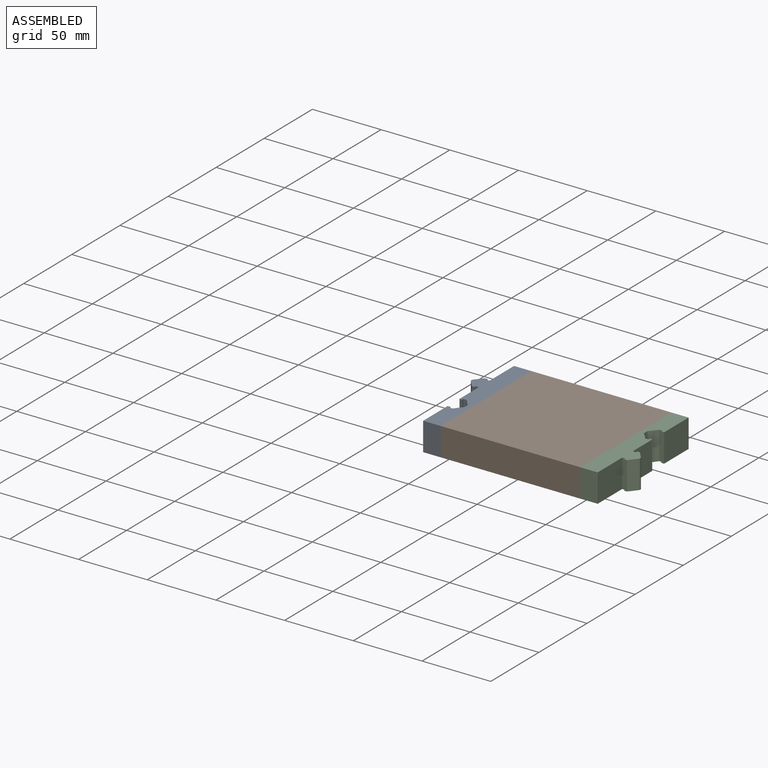
[diagram: assembled view]
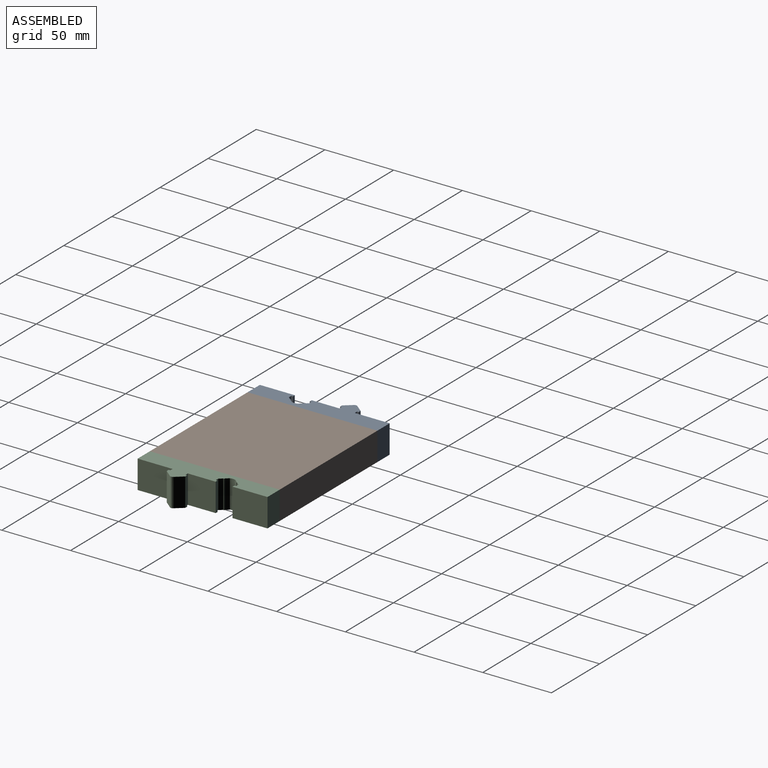
[diagram: assembled view, second angle]
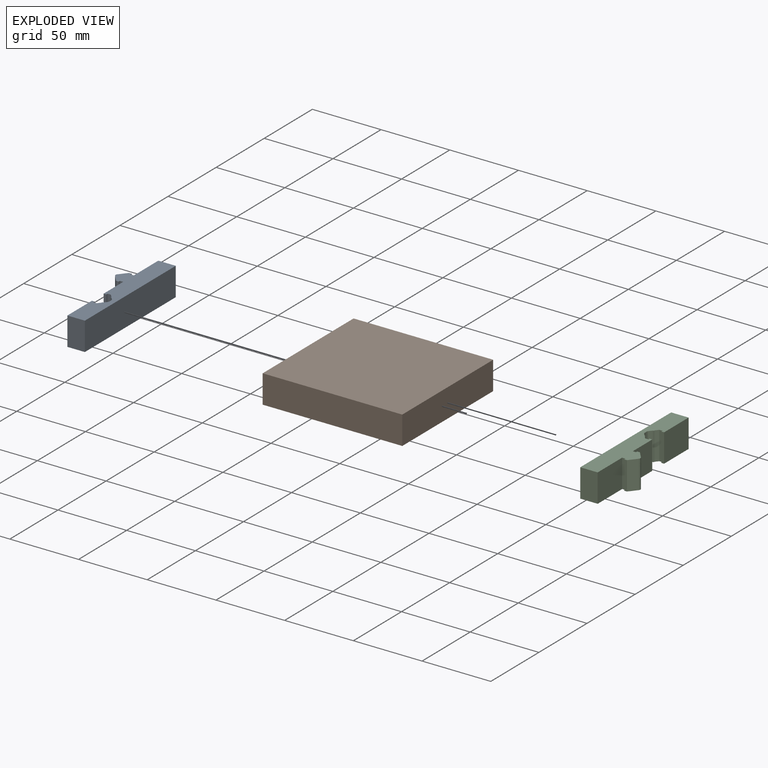
[diagram: exploded view]
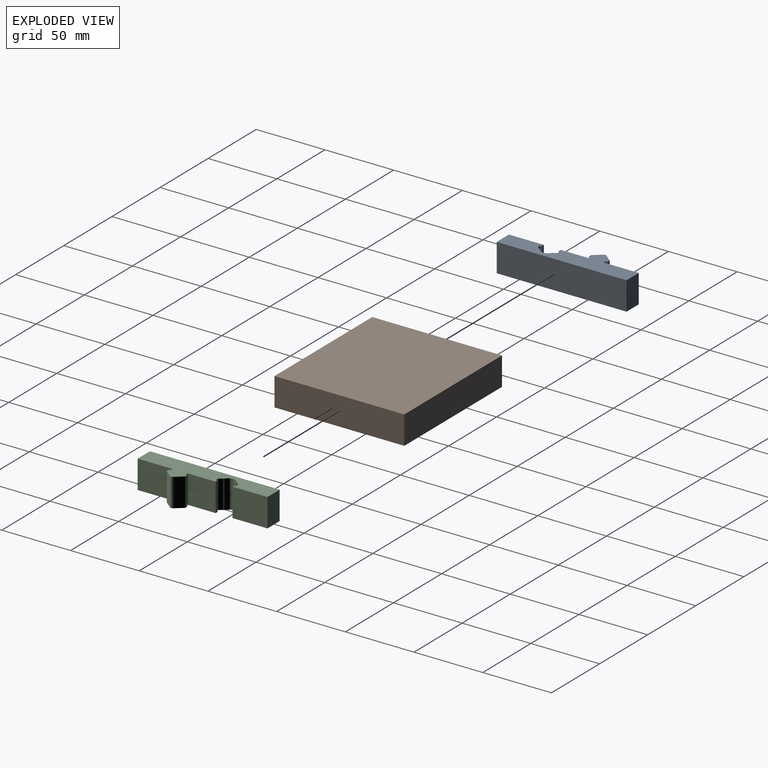
[diagram: exploded view, second angle]
ASSEMBLY  parts=3 mates=3
PART A: 32 faces, bbox 22.1x94.5x20.6 mm
  f0: plane 20.64x5.39mm, normal (-0.77,0.64,0), area 144.2mm2, adj f1,f29,f30,f31
  f1: extruded ~20.64x1.36mm, area 31mm2, adj f0,f2,f30,f31
  f2: extruded ~20.64x1.36mm, area 31mm2, adj f1,f3,f30,f31
  f3: plane 20.64x5.39mm, normal (-0.77,-0.64,0), area 144.2mm2, adj f2,f4,f30,f31
  f4: plane 20.64x1.98mm, normal (0,-1,0), area 41mm2, adj f3,f5,f30,f31
  f5: plane 20.64x1.19mm, normal (1,0,0), area 24.6mm2, adj f4,f6,f30,f31
  f6: plane 20.64x2.38mm, normal (0,-1,0), area 49.1mm2, adj f5,f7,f30,f31
  f7: plane 20.64x20.24mm, normal (-1,0,0), area 417.8mm2, adj f6,f8,f30,f31
  f8: plane 20.64x1.98mm, normal (0,-1,0), area 41mm2, adj f7,f9,f30,f31
  f9: plane 20.64x1.19mm, normal (1,0,0), area 24.6mm2, adj f8,f10,f30,f31
  f10: plane 20.64x2.38mm, normal (0,-1,0), area 49.1mm2, adj f9,f11,f30,f31
  f11: plane 20.64x2.37mm, normal (-0.77,-0.64,0), area 63.9mm2, adj f10,f12,f30,f31
  f12: cylinder r=0.4mm len=20.64mm, axis (0,0,-1), area 25.7mm2, adj f11,f13,f30,f31
  f13: plane 20.64x2.37mm, normal (-0.77,-0.64,0), area 63.9mm2, adj f12,f14,f30,f31
  f14: extruded ~20.64x1.99mm, area 41.7mm2, adj f13,f15,f30,f31
  f15: extruded ~20.64x1.99mm, area 41.7mm2, adj f14,f16,f30,f31
  f16: plane 20.64x2.37mm, normal (-0.77,0.64,0), area 63.9mm2, adj f15,f17,f30,f31
  f17: cylinder r=0.4mm len=20.64mm, axis (0,0,-1), area 25.7mm2, adj f16,f18,f30,f31
  f18: plane 20.64x2.37mm, normal (-0.77,0.64,0), area 63.9mm2, adj f17,f19,f30,f31
  f19: plane 20.64x2.38mm, normal (0,1,0), area 49.1mm2, adj f18,f20,f30,f31
  f20: plane 20.64x1.19mm, normal (1,0,0), area 24.6mm2, adj f19,f21,f30,f31
  f21: plane 20.64x1.98mm, normal (0,1,0), area 41mm2, adj f20,f22,f30,f31
  f22: plane 25.4x20.64mm, normal (-1,0,0), area 524.2mm2, adj f21,f23,f30,f31
  f23: plane 20.64x12.7mm, normal (0,-1,0), area 262.1mm2, adj f22,f24,f30,f31
  f24: plane 94.46x20.64mm, normal (1,0,0), area 1949.4mm2, adj f23,f25,f30,f31
  f25: plane 20.64x12.7mm, normal (0,1,0), area 262.1mm2, adj f24,f26,f30,f31
  f26: plane 25.4x20.64mm, normal (-1,0,0), area 524.2mm2, adj f25,f27,f30,f31
  f27: plane 20.64x2.38mm, normal (0,1,0), area 49.1mm2, adj f26,f28,f30,f31
  f28: plane 20.64x1.19mm, normal (1,0,0), area 24.6mm2, adj f27,f29,f30,f31
  f29: plane 20.64x1.98mm, normal (0,1,0), area 41mm2, adj f0,f28,f30,f31
  f30: plane 94.46x22.11mm, normal (0,0,1), area 1188.3mm2, adj f0,f1,f2,f3,f4,f5,f6,f7
  f31: plane 94.46x22.11mm, normal (0,0,-1), area 1188.3mm2, adj f0,f1,f2,f3,f4,f5,f6,f7
PART B: 6 faces, bbox 101.6x94.5x20.6 mm
  f0: plane 101.6x20.64mm, normal (0,-1,0), area 2096.8mm2, adj f1,f3,f4,f5
  f1: plane 101.6x94.46mm, normal (0,0,-1), area 9597.4mm2, adj f0,f2,f4,f5
  f2: plane 101.6x20.64mm, normal (0,1,0), area 2096.8mm2, adj f1,f3,f4,f5
  f3: plane 101.6x94.46mm, normal (0,0,1), area 9597.4mm2, adj f0,f2,f4,f5
  f4: plane 94.46x20.64mm, normal (1,0,0), area 1949.5mm2, adj f0,f1,f2,f3
  f5: plane 94.46x20.64mm, normal (-1,0,0), area 1949.5mm2, adj f0,f1,f2,f3
PART C: same geometry as A
PLACE A t=(-6.45,51.77,-50.4)mm
PLACE B t=(-1.72,34.34,-50.4)mm
PLACE C rot(axis=(0,0,1),180deg) t=(3.02,16.91,-50.4)mm
MATE planar A.f24 <-> B.f5  axis (1,0,0) through (-52.52,34.34,-40.08)mm
MATE fastened A.f24 <-> B.f5  axis (1,0,0) through (-52.52,34.34,-40.08)mm
MATE fastened B.f4 <-> C.f24  axis (1,0,0) through (49.08,34.34,-40.08)mm
